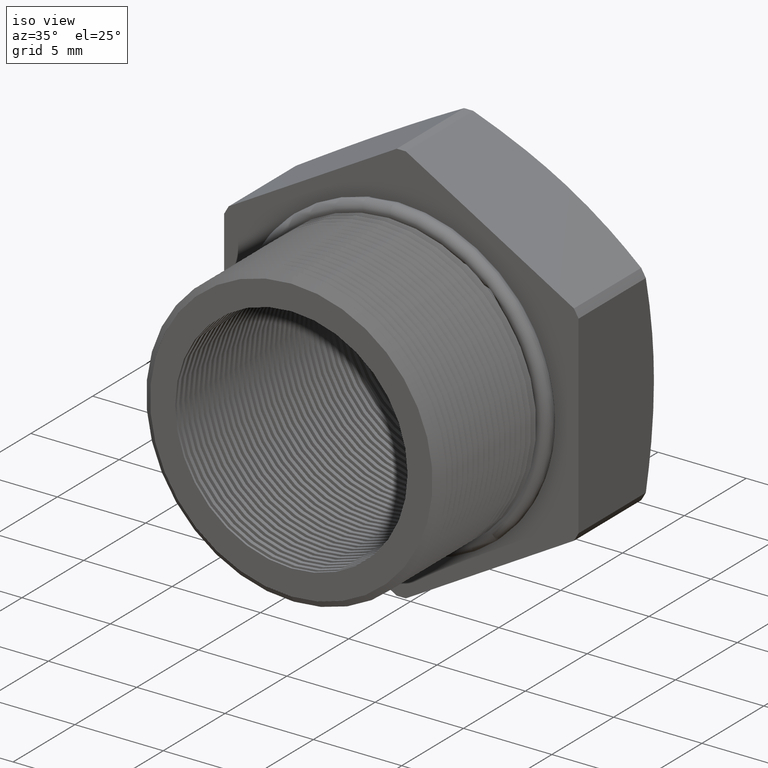
[diagram: clean part render]
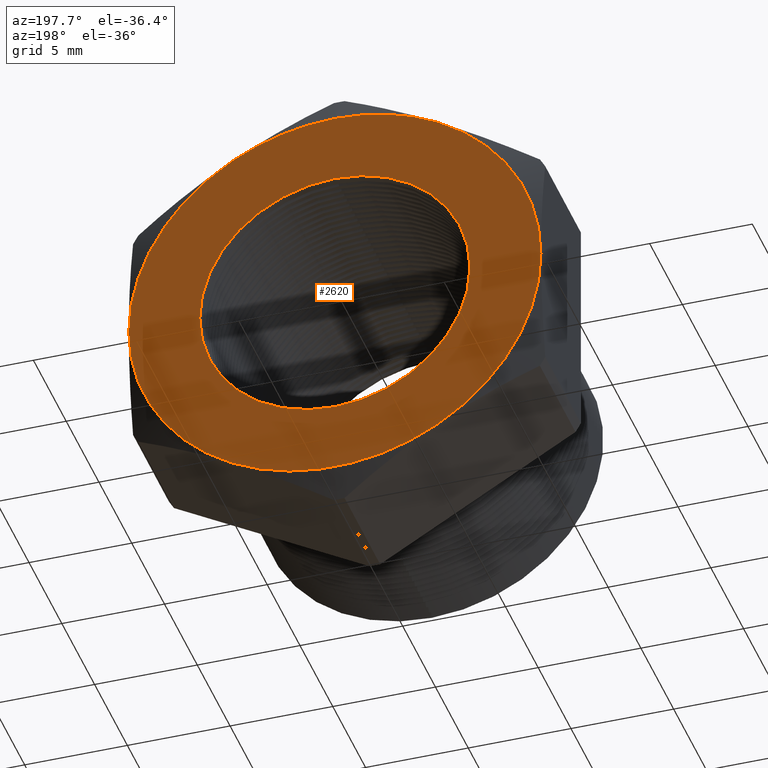
[diagram: tour spotlight — one face highlighted and labeled with its STEP entity id]
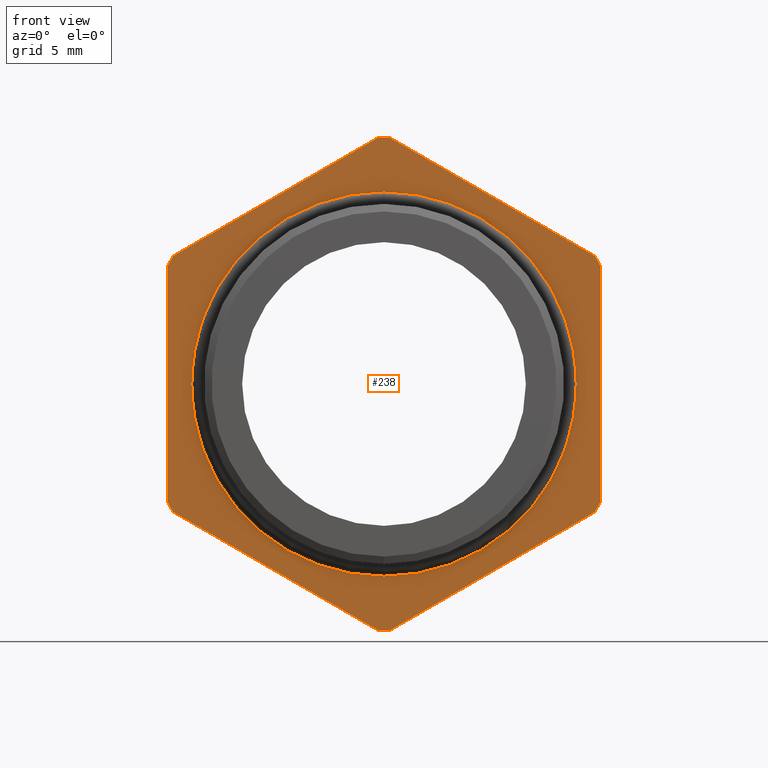
[diagram: tour spotlight — one face highlighted and labeled with its STEP entity id]
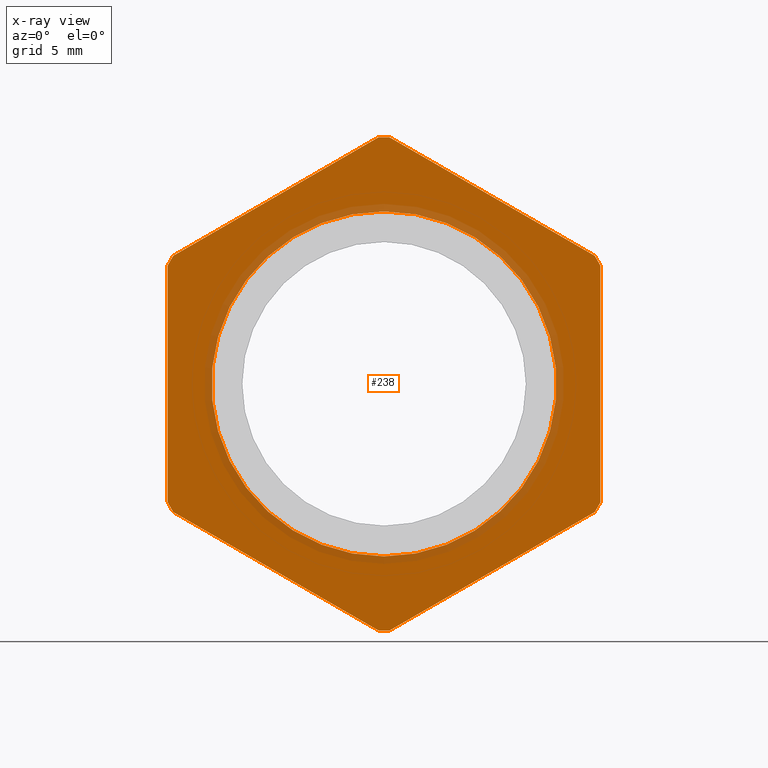
[diagram: x-ray of the same camera — body ghosted, this tour face saturated]
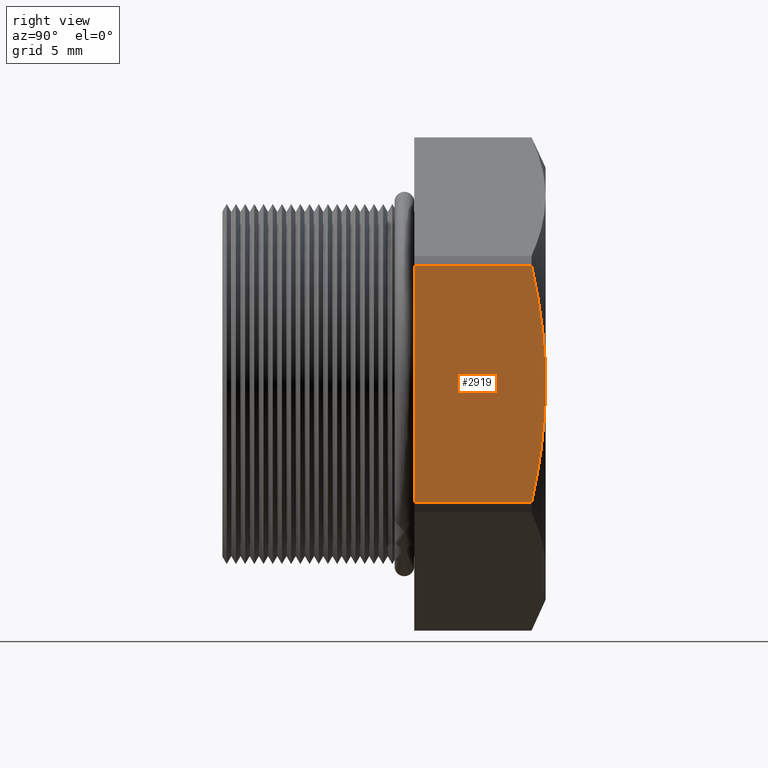
[diagram: tour spotlight — one face highlighted and labeled with its STEP entity id]
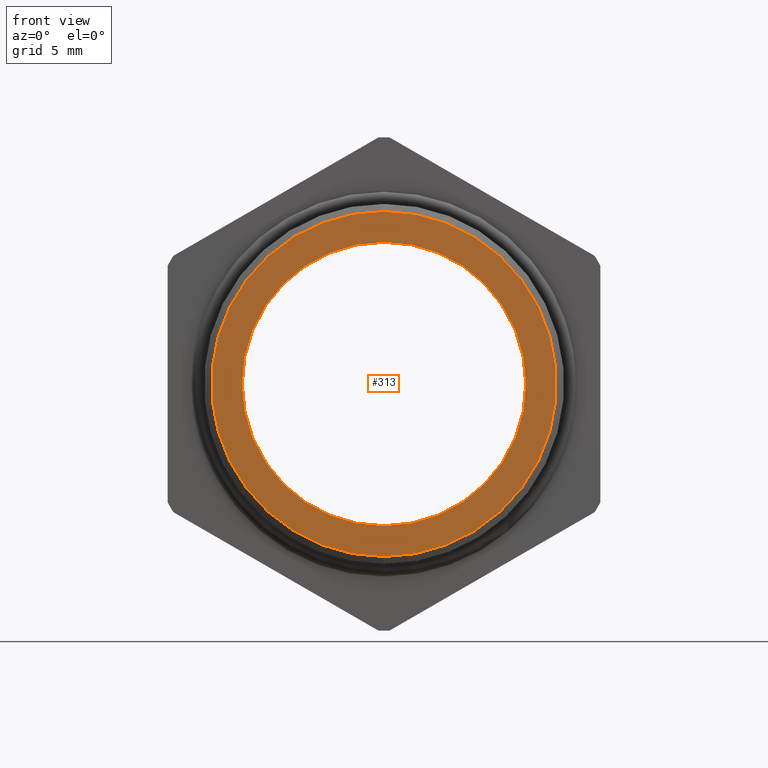
[diagram: tour spotlight — one face highlighted and labeled with its STEP entity id]
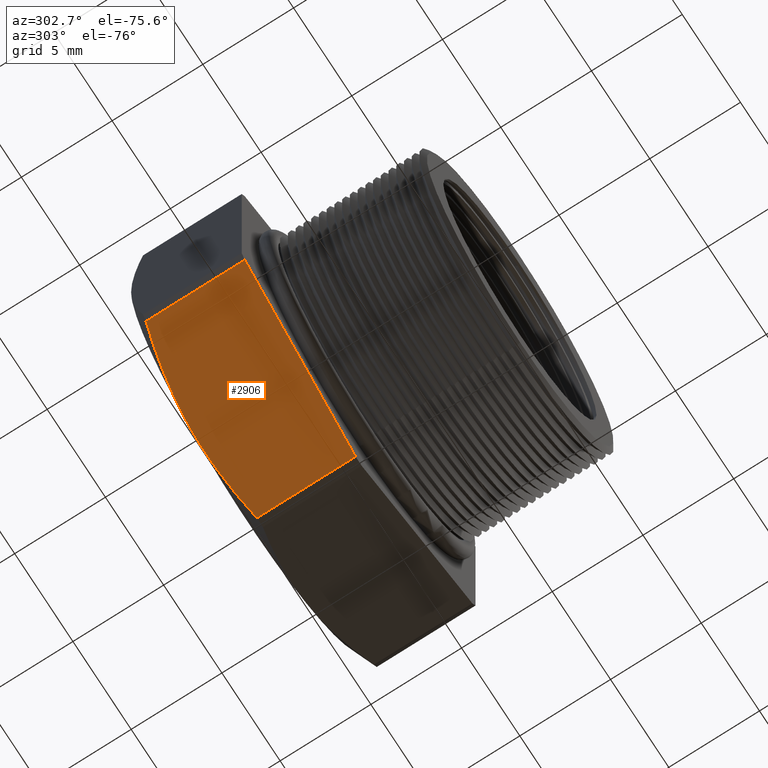
[diagram: tour spotlight — one face highlighted and labeled with its STEP entity id]
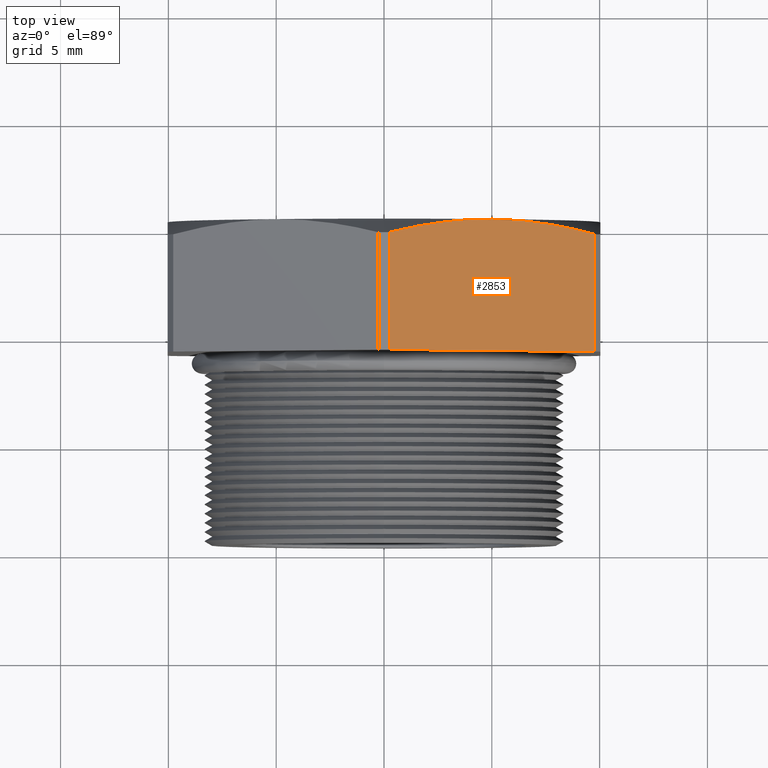
[diagram: tour spotlight — one face highlighted and labeled with its STEP entity id]
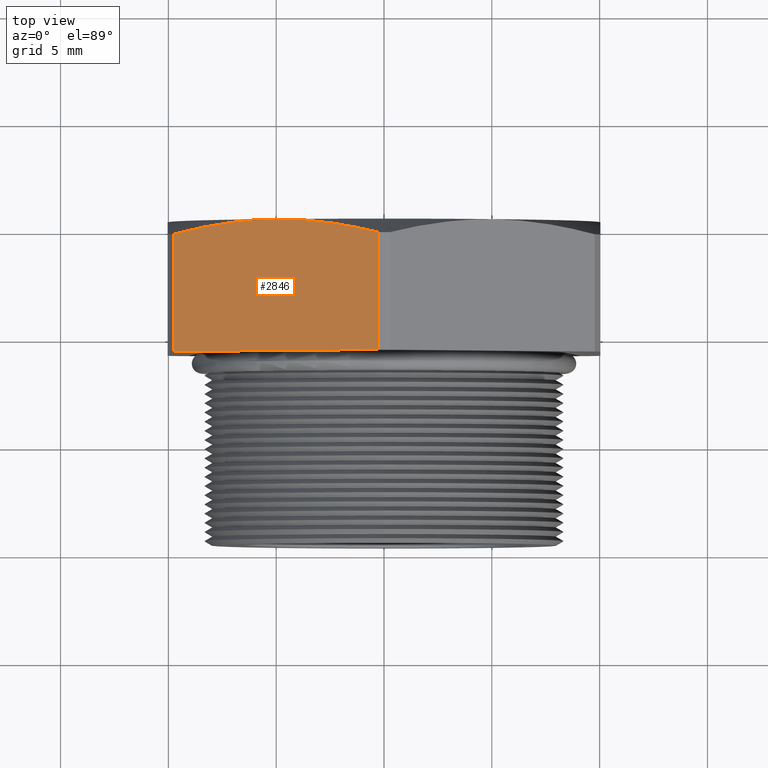
[diagram: tour spotlight — one face highlighted and labeled with its STEP entity id]
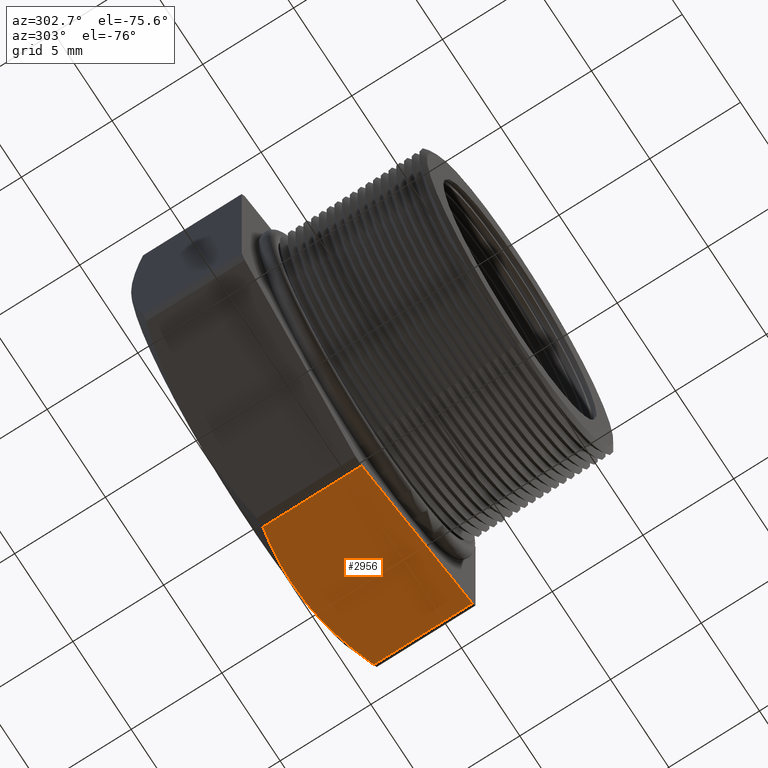
[diagram: tour spotlight — one face highlighted and labeled with its STEP entity id]
A machine part: a face-by-face anatomy tour. The part has 361 B-rep faces; the first image is the clean iso view, then the 8 largest visible faces are spotlighted one at a time (largest first), each with its STEP entity span.

Face 1 — auxiliary view, entity #2620. In plain terms, the highlighted planar face has unit normal (0, 1, 0).
Definition (entity closure, byte-faithful):
#672 = ORIENTED_EDGE ( 'NONE', *, *, #2709, .T. ) ;
#760 = VERTEX_POINT ( 'NONE', #5749 ) ;
#765 = EDGE_CURVE ( 'NONE', #760, #766, #5738, .T. ) ;
#766 = VERTEX_POINT ( 'NONE', #5733 ) ;
#1131 = DIRECTION ( 'NONE',  ( 0.0000000000000000000, 0.0000000000000000000, 1.000000000000000000 ) ) ;
#1132 = DIRECTION ( 'NONE',  ( 0.0000000000000000000, 1.000000000000000000, 0.0000000000000000000 ) ) ;
#1133 = CARTESIAN_POINT ( 'NONE',  ( 0.0000000000000000000, 0.4075548905829479200, 0.0000000000000000000 ) ) ;
#1134 = AXIS2_PLACEMENT_3D ( 'NONE', #1133, #1132, #1131 ) ;
#1135 = CIRCLE ( 'NONE', #1134, 0.3949999999999999600 ) ;
#1165 = CARTESIAN_POINT ( 'NONE',  ( 0.1975000000000001800, 0.4075548905829479700, 0.3420800344948533000 ) ) ;
#1166 = CARTESIAN_POINT ( 'NONE',  ( 0.0000000000000000000, 0.4075548905829479200, 0.3949999999999999600 ) ) ;
#2620 = ADVANCED_FACE ( 'NONE', ( #7276, #7275 ), #7274, .T. ) ;
#2643 = VERTEX_POINT ( 'NONE', #7294 ) ;
#2644 = VERTEX_POINT ( 'NONE', #7288 ) ;
#2664 = ORIENTED_EDGE ( 'NONE', *, *, #6222, .T. ) ;
#2666 = ORIENTED_EDGE ( 'NONE', *, *, #2684, .T. ) ;
#2676 = ORIENTED_EDGE ( 'NONE', *, *, #765, .T. ) ;
#2677 = VERTEX_POINT ( 'NONE', #7358 ) ;
#2678 = ORIENTED_EDGE ( 'NONE', *, *, #2680, .T. ) ;
#2680 = EDGE_CURVE ( 'NONE', #2643, #2644, #7347, .T. ) ;
#2684 = EDGE_CURVE ( 'NONE', #6238, #2643, #7406, .T. ) ;
#2685 = EDGE_LOOP ( 'NONE', ( #2686, #2664, #2666, #2678, #672, #2708, #2705 ) ) ;
#2686 = ORIENTED_EDGE ( 'NONE', *, *, #2687, .T. ) ;
#2687 = EDGE_CURVE ( 'NONE', #2677, #6237, #7401, .T. ) ;
#2693 = ORIENTED_EDGE ( 'NONE', *, *, #2694, .T. ) ;
#2694 = EDGE_CURVE ( 'NONE', #766, #760, #7384, .T. ) ;
#2703 = VERTEX_POINT ( 'NONE', #7435 ) ;
#2704 = EDGE_CURVE ( 'NONE', #2707, #2703, #7430, .T. ) ;
#2705 = ORIENTED_EDGE ( 'NONE', *, *, #2706, .T. ) ;
#2706 = EDGE_CURVE ( 'NONE', #2703, #2677, #7425, .T. ) ;
#2707 = VERTEX_POINT ( 'NONE', #7420 ) ;
#2708 = ORIENTED_EDGE ( 'NONE', *, *, #2704, .T. ) ;
#2709 = EDGE_CURVE ( 'NONE', #2644, #2707, #7418, .T. ) ;
#2710 = EDGE_LOOP ( 'NONE', ( #2693, #2676 ) ) ;
#5733 = CARTESIAN_POINT ( 'NONE',  ( 0.0000000000000000000, 0.4075548905829479200, -0.2589880461203001900 ) ) ;
#5734 = DIRECTION ( 'NONE',  ( 0.0000000000000000000, 0.0000000000000000000, -1.000000000000000000 ) ) ;
#5735 = DIRECTION ( 'NONE',  ( -0.0000000000000000000, -1.000000000000000000, -0.0000000000000000000 ) ) ;
#5736 = CARTESIAN_POINT ( 'NONE',  ( 0.0000000000000000000, 0.4075548905829479200, 0.0000000000000000000 ) ) ;
#5737 = AXIS2_PLACEMENT_3D ( 'NONE', #5736, #5735, #5734 ) ;
#5738 = CIRCLE ( 'NONE', #5737, 0.2589880461203001900 ) ;
#5749 = CARTESIAN_POINT ( 'NONE',  ( 3.171688816986526800E-017, 0.4075548905829479200, 0.2589880461203001900 ) ) ;
#6222 = EDGE_CURVE ( 'NONE', #6237, #6238, #1135, .T. ) ;
#6237 = VERTEX_POINT ( 'NONE', #1166 ) ;
#6238 = VERTEX_POINT ( 'NONE', #1165 ) ;
#7269 = DIRECTION ( 'NONE',  ( 0.0000000000000000000, -0.0000000000000000000, 1.000000000000000000 ) ) ;
#7270 = DIRECTION ( 'NONE',  ( 0.0000000000000000000, 1.000000000000000000, 0.0000000000000000000 ) ) ;
#7271 = AXIS2_PLACEMENT_3D ( 'NONE', #7273, #7270, #7269 ) ;
#7273 = CARTESIAN_POINT ( 'NONE',  ( 0.4502999999999999800, 0.4075548905829479200, 0.0000000000000000000 ) ) ;
#7274 = PLANE ( 'NONE',  #7271 ) ;
#7275 = FACE_OUTER_BOUND ( 'NONE', #2685, .T. ) ;
#7276 = FACE_BOUND ( 'NONE', #2710, .T. ) ;
#7288 = CARTESIAN_POINT ( 'NONE',  ( 0.1975000000000000400, 0.4075548905829479200, -0.3420800344948534700 ) ) ;
#7294 = CARTESIAN_POINT ( 'NONE',  ( 0.3949999999999999600, 0.4075548905829479200, 1.182924880895400500E-016 ) ) ;
#7343 = DIRECTION ( 'NONE',  ( 0.0000000000000000000, 0.0000000000000000000, 1.000000000000000000 ) ) ;
#7344 = DIRECTION ( 'NONE',  ( 0.0000000000000000000, 1.000000000000000000, 0.0000000000000000000 ) ) ;
#7345 = CARTESIAN_POINT ( 'NONE',  ( 0.0000000000000000000, 0.4075548905829479200, 0.0000000000000000000 ) ) ;
#7346 = AXIS2_PLACEMENT_3D ( 'NONE', #7345, #7344, #7343 ) ;
#7347 = CIRCLE ( 'NONE', #7346, 0.3949999999999999600 ) ;
#7358 = CARTESIAN_POINT ( 'NONE',  ( -0.1975000000000000100, 0.4075548905829479200, 0.3420800344948533600 ) ) ;
#7379 = DIRECTION ( 'NONE',  ( 0.0000000000000000000, 0.0000000000000000000, -1.000000000000000000 ) ) ;
#7380 = DIRECTION ( 'NONE',  ( -0.0000000000000000000, -1.000000000000000000, -0.0000000000000000000 ) ) ;
#7382 = CARTESIAN_POINT ( 'NONE',  ( 0.0000000000000000000, 0.4075548905829479200, 0.0000000000000000000 ) ) ;
#7383 = AXIS2_PLACEMENT_3D ( 'NONE', #7382, #7380, #7379 ) ;
#7384 = CIRCLE ( 'NONE', #7383, 0.2589880461203001900 ) ;
#7397 = DIRECTION ( 'NONE',  ( 0.0000000000000000000, 0.0000000000000000000, 1.000000000000000000 ) ) ;
#7398 = DIRECTION ( 'NONE',  ( 0.0000000000000000000, 1.000000000000000000, 0.0000000000000000000 ) ) ;
#7399 = CARTESIAN_POINT ( 'NONE',  ( 0.0000000000000000000, 0.4075548905829479200, 0.0000000000000000000 ) ) ;
#7400 = AXIS2_PLACEMENT_3D ( 'NONE', #7399, #7398, #7397 ) ;
#7401 = CIRCLE ( 'NONE', #7400, 0.3949999999999999600 ) ;
#7402 = DIRECTION ( 'NONE',  ( 0.0000000000000000000, 0.0000000000000000000, 1.000000000000000000 ) ) ;
#7403 = DIRECTION ( 'NONE',  ( 0.0000000000000000000, 1.000000000000000000, 0.0000000000000000000 ) ) ;
#7404 = CARTESIAN_POINT ( 'NONE',  ( 0.0000000000000000000, 0.4075548905829479200, 0.0000000000000000000 ) ) ;
#7405 = AXIS2_PLACEMENT_3D ( 'NONE', #7404, #7403, #7402 ) ;
#7406 = CIRCLE ( 'NONE', #7405, 0.3949999999999999600 ) ;
#7414 = DIRECTION ( 'NONE',  ( 0.0000000000000000000, 0.0000000000000000000, 1.000000000000000000 ) ) ;
#7415 = DIRECTION ( 'NONE',  ( 0.0000000000000000000, 1.000000000000000000, 0.0000000000000000000 ) ) ;
#7416 = CARTESIAN_POINT ( 'NONE',  ( 0.0000000000000000000, 0.4075548905829479200, 0.0000000000000000000 ) ) ;
#7417 = AXIS2_PLACEMENT_3D ( 'NONE', #7416, #7415, #7414 ) ;
#7418 = CIRCLE ( 'NONE', #7417, 0.3949999999999999600 ) ;
#7420 = CARTESIAN_POINT ( 'NONE',  ( -0.1975000000000000900, 0.4075548905829479200, -0.3420800344948531900 ) ) ;
#7421 = DIRECTION ( 'NONE',  ( 0.0000000000000000000, 0.0000000000000000000, 1.000000000000000000 ) ) ;
#7422 = DIRECTION ( 'NONE',  ( 0.0000000000000000000, 1.000000000000000000, 0.0000000000000000000 ) ) ;
#7423 = CARTESIAN_POINT ( 'NONE',  ( 0.0000000000000000000, 0.4075548905829479200, 0.0000000000000000000 ) ) ;
#7424 = AXIS2_PLACEMENT_3D ( 'NONE', #7423, #7422, #7421 ) ;
#7425 = CIRCLE ( 'NONE', #7424, 0.3949999999999999600 ) ;
#7426 = DIRECTION ( 'NONE',  ( 0.0000000000000000000, 0.0000000000000000000, 1.000000000000000000 ) ) ;
#7427 = DIRECTION ( 'NONE',  ( 0.0000000000000000000, 1.000000000000000000, 0.0000000000000000000 ) ) ;
#7428 = CARTESIAN_POINT ( 'NONE',  ( 0.0000000000000000000, 0.4075548905829479200, 0.0000000000000000000 ) ) ;
#7429 = AXIS2_PLACEMENT_3D ( 'NONE', #7428, #7427, #7426 ) ;
#7430 = CIRCLE ( 'NONE', #7429, 0.3949999999999999600 ) ;
#7435 = CARTESIAN_POINT ( 'NONE',  ( -0.3949999999999999600, 0.4075548905829479200, 0.0000000000000000000 ) ) ;

Face 2 — front view, entity #238. An x-ray twin of the same camera follows (body ghosted, this face saturated) — the face is partly hidden behind the body. In plain terms, the highlighted planar face has unit normal (0, -1, -0).
Definition (entity closure, byte-faithful):
#133 = EDGE_CURVE ( 'NONE', #800, #798, #4602, .T. ) ;
#161 = EDGE_LOOP ( 'NONE', ( #225, #231, #226, #232, #224, #230, #300, #302, #298, #297, #271, #268, #267 ) ) ;
#224 = ORIENTED_EDGE ( 'NONE', *, *, #2843, .T. ) ;
#225 = ORIENTED_EDGE ( 'NONE', *, *, #621, .T. ) ;
#226 = ORIENTED_EDGE ( 'NONE', *, *, #551, .T. ) ;
#227 = EDGE_CURVE ( 'NONE', #798, #800, #4736, .T. ) ;
#230 = ORIENTED_EDGE ( 'NONE', *, *, #2864, .T. ) ;
#231 = ORIENTED_EDGE ( 'NONE', *, *, #2124, .T. ) ;
#232 = ORIENTED_EDGE ( 'NONE', *, *, #2845, .T. ) ;
#238 = ADVANCED_FACE ( 'NONE', ( #4795, #4793 ), #4792, .T. ) ;
#243 = EDGE_LOOP ( 'NONE', ( #250, #246 ) ) ;
#246 = ORIENTED_EDGE ( 'NONE', *, *, #227, .F. ) ;
#250 = ORIENTED_EDGE ( 'NONE', *, *, #133, .F. ) ;
#267 = ORIENTED_EDGE ( 'NONE', *, *, #2922, .T. ) ;
#268 = ORIENTED_EDGE ( 'NONE', *, *, #681, .T. ) ;
#271 = ORIENTED_EDGE ( 'NONE', *, *, #2642, .T. ) ;
#297 = ORIENTED_EDGE ( 'NONE', *, *, #2960, .T. ) ;
#298 = ORIENTED_EDGE ( 'NONE', *, *, #2825, .T. ) ;
#300 = ORIENTED_EDGE ( 'NONE', *, *, #2959, .T. ) ;
#302 = ORIENTED_EDGE ( 'NONE', *, *, #2916, .T. ) ;
#528 = VERTEX_POINT ( 'NONE', #5247 ) ;
#548 = VERTEX_POINT ( 'NONE', #5279 ) ;
#551 = EDGE_CURVE ( 'NONE', #2696, #548, #5336, .T. ) ;
#571 = VERTEX_POINT ( 'NONE', #5370 ) ;
#621 = EDGE_CURVE ( 'NONE', #528, #624, #5458, .T. ) ;
#624 = VERTEX_POINT ( 'NONE', #5453 ) ;
#643 = VERTEX_POINT ( 'NONE', #5485 ) ;
#663 = VERTEX_POINT ( 'NONE', #5506 ) ;
#681 = EDGE_CURVE ( 'NONE', #2568, #571, #5534, .T. ) ;
#798 = VERTEX_POINT ( 'NONE', #5789 ) ;
#800 = VERTEX_POINT ( 'NONE', #5788 ) ;
#2124 = EDGE_CURVE ( 'NONE', #624, #2696, #3341, .T. ) ;
#2568 = VERTEX_POINT ( 'NONE', #7176 ) ;
#2569 = VERTEX_POINT ( 'NONE', #7171 ) ;
#2642 = EDGE_CURVE ( 'NONE', #2569, #2568, #7293, .T. ) ;
#2696 = VERTEX_POINT ( 'NONE', #7378 ) ;
#2798 = VERTEX_POINT ( 'NONE', #7587 ) ;
#2820 = VERTEX_POINT ( 'NONE', #7622 ) ;
#2825 = EDGE_CURVE ( 'NONE', #663, #643, #7666, .T. ) ;
#2829 = VERTEX_POINT ( 'NONE', #7661 ) ;
#2838 = VERTEX_POINT ( 'NONE', #7641 ) ;
#2843 = EDGE_CURVE ( 'NONE', #2829, #2838, #7639, .T. ) ;
#2845 = EDGE_CURVE ( 'NONE', #548, #2829, #7695, .T. ) ;
#2864 = EDGE_CURVE ( 'NONE', #2838, #2820, #7748, .T. ) ;
#2916 = EDGE_CURVE ( 'NONE', #2798, #663, #7820, .T. ) ;
#2922 = EDGE_CURVE ( 'NONE', #571, #528, #7855, .T. ) ;
#2959 = EDGE_CURVE ( 'NONE', #2820, #2798, #7902, .T. ) ;
#2960 = EDGE_CURVE ( 'NONE', #643, #2569, #7961, .T. ) ;
#3338 = DIRECTION ( 'NONE',  ( -2.994746533912406700E-016, 0.0000000000000000000, 1.000000000000000000 ) ) ;
#3339 = VECTOR ( 'NONE', #3338, 39.37007874015748100 ) ;
#3340 = CARTESIAN_POINT ( 'NONE',  ( 0.3949999999999999600, 0.1675548905829479500, 2.395797227129924600E-017 ) ) ;
#3341 = LINE ( 'NONE', #3340, #3339 ) ;
#4593 = DIRECTION ( 'NONE',  ( 0.0000000000000000000, 0.0000000000000000000, -1.000000000000000000 ) ) ;
#4594 = DIRECTION ( 'NONE',  ( -0.0000000000000000000, -1.000000000000000000, -0.0000000000000000000 ) ) ;
#4595 = CARTESIAN_POINT ( 'NONE',  ( 0.0000000000000000000, 0.1675548905829479500, 0.0000000000000000000 ) ) ;
#4596 = AXIS2_PLACEMENT_3D ( 'NONE', #4595, #4594, #4593 ) ;
#4602 = CIRCLE ( 'NONE', #4596, 0.3150000000000000000 ) ;
#4732 = DIRECTION ( 'NONE',  ( 0.0000000000000000000, 0.0000000000000000000, -1.000000000000000000 ) ) ;
#4733 = DIRECTION ( 'NONE',  ( -0.0000000000000000000, -1.000000000000000000, -0.0000000000000000000 ) ) ;
#4734 = CARTESIAN_POINT ( 'NONE',  ( 0.0000000000000000000, 0.1675548905829479500, 0.0000000000000000000 ) ) ;
#4735 = AXIS2_PLACEMENT_3D ( 'NONE', #4734, #4733, #4732 ) ;
#4736 = CIRCLE ( 'NONE', #4735, 0.3150000000000000000 ) ;
#4787 = DIRECTION ( 'NONE',  ( 0.0000000000000000000, 0.0000000000000000000, -1.000000000000000000 ) ) ;
#4788 = DIRECTION ( 'NONE',  ( 0.0000000000000000000, -1.000000000000000000, -0.0000000000000000000 ) ) ;
#4789 = AXIS2_PLACEMENT_3D ( 'NONE', #4791, #4788, #4787 ) ;
#4791 = CARTESIAN_POINT ( 'NONE',  ( 0.3150000000000000000, 0.1675548905829479500, 0.0000000000000000000 ) ) ;
#4792 = PLANE ( 'NONE',  #4789 ) ;
#4793 = FACE_OUTER_BOUND ( 'NONE', #161, .T. ) ;
#4795 = FACE_BOUND ( 'NONE', #243, .T. ) ;
#5247 = CARTESIAN_POINT ( 'NONE',  ( 0.3847399997329628000, 0.1675548905829479500, -0.2339769702459620100 ) ) ;
#5279 = CARTESIAN_POINT ( 'NONE',  ( 0.3847399997329628600, 0.1675548905829479500, 0.2339769702459617900 ) ) ;
#5331 = DIRECTION ( 'NONE',  ( 0.0000000000000000000, 0.0000000000000000000, -1.000000000000000000 ) ) ;
#5332 = DIRECTION ( 'NONE',  ( -0.0000000000000000000, -1.000000000000000000, -0.0000000000000000000 ) ) ;
#5333 = CARTESIAN_POINT ( 'NONE',  ( 0.0000000000000000000, 0.1675548905829479500, 0.0000000000000000000 ) ) ;
#5335 = AXIS2_PLACEMENT_3D ( 'NONE', #5333, #5332, #5331 ) ;
#5336 = CIRCLE ( 'NONE', #5335, 0.4502999999999999800 ) ;
#5370 = CARTESIAN_POINT ( 'NONE',  ( 0.01026000026703720500, 0.1675548905829479500, -0.4501830987437447900 ) ) ;
#5453 = CARTESIAN_POINT ( 'NONE',  ( 0.3950000000000000200, 0.1675548905829479500, -0.2162061284977832000 ) ) ;
#5454 = DIRECTION ( 'NONE',  ( 0.0000000000000000000, 0.0000000000000000000, -1.000000000000000000 ) ) ;
#5455 = DIRECTION ( 'NONE',  ( -0.0000000000000000000, -1.000000000000000000, -0.0000000000000000000 ) ) ;
#5456 = CARTESIAN_POINT ( 'NONE',  ( 0.0000000000000000000, 0.1675548905829479500, 0.0000000000000000000 ) ) ;
#5457 = AXIS2_PLACEMENT_3D ( 'NONE', #5456, #5455, #5454 ) ;
#5458 = CIRCLE ( 'NONE', #5457, 0.4502999999999999800 ) ;
#5485 = CARTESIAN_POINT ( 'NONE',  ( -0.3847399997329630200, 0.1675548905829479500, -0.2339769702459614800 ) ) ;
#5506 = CARTESIAN_POINT ( 'NONE',  ( -0.3949999999999999600, 0.1675548905829479500, -0.2162061284977833100 ) ) ;
#5530 = DIRECTION ( 'NONE',  ( 0.0000000000000000000, 0.0000000000000000000, -1.000000000000000000 ) ) ;
#5531 = DIRECTION ( 'NONE',  ( -0.0000000000000000000, -1.000000000000000000, -0.0000000000000000000 ) ) ;
#5532 = CARTESIAN_POINT ( 'NONE',  ( 0.0000000000000000000, 0.1675548905829479500, 0.0000000000000000000 ) ) ;
#5533 = AXIS2_PLACEMENT_3D ( 'NONE', #5532, #5531, #5530 ) ;
#5534 = CIRCLE ( 'NONE', #5533, 0.4502999999999999800 ) ;
#5788 = CARTESIAN_POINT ( 'NONE',  ( 0.0000000000000000000, 0.1675548905829479500, -0.3150000000000000000 ) ) ;
#5789 = CARTESIAN_POINT ( 'NONE',  ( 3.857637417314162700E-017, 0.1675548905829479500, 0.3150000000000000000 ) ) ;
#7171 = CARTESIAN_POINT ( 'NONE',  ( -0.01026000026703719400, 0.1675548905829479500, -0.4501830987437449600 ) ) ;
#7176 = CARTESIAN_POINT ( 'NONE',  ( 0.0000000000000000000, 0.1675548905829479500, -0.4502999999999999800 ) ) ;
#7289 = DIRECTION ( 'NONE',  ( 0.0000000000000000000, 0.0000000000000000000, -1.000000000000000000 ) ) ;
#7290 = DIRECTION ( 'NONE',  ( -0.0000000000000000000, -1.000000000000000000, -0.0000000000000000000 ) ) ;
#7291 = CARTESIAN_POINT ( 'NONE',  ( 0.0000000000000000000, 0.1675548905829479500, 0.0000000000000000000 ) ) ;
#7292 = AXIS2_PLACEMENT_3D ( 'NONE', #7291, #7290, #7289 ) ;
#7293 = CIRCLE ( 'NONE', #7292, 0.4502999999999999800 ) ;
#7378 = CARTESIAN_POINT ( 'NONE',  ( 0.3949999999999999100, 0.1675548905829479500, 0.2162061284977834200 ) ) ;
#7587 = CARTESIAN_POINT ( 'NONE',  ( -0.3949999999999999600, 0.1675548905829479500, 0.2162061284977833100 ) ) ;
#7622 = CARTESIAN_POINT ( 'NONE',  ( -0.3847399997329628000, 0.1675548905829479500, 0.2339769702459618100 ) ) ;
#7635 = DIRECTION ( 'NONE',  ( 0.0000000000000000000, 0.0000000000000000000, -1.000000000000000000 ) ) ;
#7636 = DIRECTION ( 'NONE',  ( -0.0000000000000000000, -1.000000000000000000, -0.0000000000000000000 ) ) ;
#7637 = CARTESIAN_POINT ( 'NONE',  ( 0.0000000000000000000, 0.1675548905829479500, 0.0000000000000000000 ) ) ;
#7638 = AXIS2_PLACEMENT_3D ( 'NONE', #7637, #7636, #7635 ) ;
#7639 = CIRCLE ( 'NONE', #7638, 0.4502999999999999800 ) ;
#7641 = CARTESIAN_POINT ( 'NONE',  ( -0.01026000026703719400, 0.1675548905829479500, 0.4501830987437449000 ) ) ;
#7661 = CARTESIAN_POINT ( 'NONE',  ( 0.01026000026703746700, 0.1675548905829479500, 0.4501830987437449600 ) ) ;
#7662 = DIRECTION ( 'NONE',  ( 0.0000000000000000000, 0.0000000000000000000, -1.000000000000000000 ) ) ;
#7663 = DIRECTION ( 'NONE',  ( -0.0000000000000000000, -1.000000000000000000, -0.0000000000000000000 ) ) ;
#7664 = CARTESIAN_POINT ( 'NONE',  ( 0.0000000000000000000, 0.1675548905829479500, 0.0000000000000000000 ) ) ;
#7665 = AXIS2_PLACEMENT_3D ( 'NONE', #7664, #7663, #7662 ) ;
#7666 = CIRCLE ( 'NONE', #7665, 0.4502999999999999800 ) ;
#7692 = DIRECTION ( 'NONE',  ( -0.8660254037844384900, 0.0000000000000000000, 0.5000000000000001100 ) ) ;
#7693 = VECTOR ( 'NONE', #7692, 39.37007874015748900 ) ;
#7694 = CARTESIAN_POINT ( 'NONE',  ( 0.4337500000000000200, 0.1675548905829479500, 0.2056810333988042200 ) ) ;
#7695 = LINE ( 'NONE', #7694, #7693 ) ;
#7744 = DIRECTION ( 'NONE',  ( -0.8660254037844386000, 0.0000000000000000000, -0.4999999999999998300 ) ) ;
#7745 = VECTOR ( 'NONE', #7744, 39.37007874015748900 ) ;
#7746 = CARTESIAN_POINT ( 'NONE',  ( 0.03875000000000002700, 0.1675548905829479500, 0.4784790355909024400 ) ) ;
#7748 = LINE ( 'NONE', #7746, #7745 ) ;
#7817 = DIRECTION ( 'NONE',  ( 0.0000000000000000000, 0.0000000000000000000, -1.000000000000000000 ) ) ;
#7818 = VECTOR ( 'NONE', #7817, 39.37007874015748100 ) ;
#7819 = CARTESIAN_POINT ( 'NONE',  ( -0.3949999999999999600, 0.1675548905829479500, 0.0000000000000000000 ) ) ;
#7820 = LINE ( 'NONE', #7819, #7818 ) ;
#7846 = DIRECTION ( 'NONE',  ( 0.8660254037844388200, 0.0000000000000000000, 0.4999999999999998300 ) ) ;
#7847 = VECTOR ( 'NONE', #7846, 39.37007874015748100 ) ;
#7854 = CARTESIAN_POINT ( 'NONE',  ( 0.4337499999999999700, 0.1675548905829479500, -0.2056810333988043400 ) ) ;
#7855 = LINE ( 'NONE', #7854, #7847 ) ;
#7901 = AXIS2_PLACEMENT_3D ( 'NONE', #7964, #7963, #7962 ) ;
#7902 = CIRCLE ( 'NONE', #7901, 0.4502999999999999800 ) ;
#7958 = DIRECTION ( 'NONE',  ( 0.8660254037844384900, 0.0000000000000000000, -0.5000000000000001100 ) ) ;
#7959 = VECTOR ( 'NONE', #7958, 39.37007874015748900 ) ;
#7960 = CARTESIAN_POINT ( 'NONE',  ( 0.03874999999999986100, 0.1675548905829479500, -0.4784790355909022700 ) ) ;
#7961 = LINE ( 'NONE', #7960, #7959 ) ;
#7962 = DIRECTION ( 'NONE',  ( 0.0000000000000000000, 0.0000000000000000000, -1.000000000000000000 ) ) ;
#7963 = DIRECTION ( 'NONE',  ( -0.0000000000000000000, -1.000000000000000000, -0.0000000000000000000 ) ) ;
#7964 = CARTESIAN_POINT ( 'NONE',  ( 0.0000000000000000000, 0.1675548905829479500, 0.0000000000000000000 ) ) ;

Face 3 — right view, entity #2919. In plain terms, the highlighted planar face has unit normal (1, -0, 0).
Definition (entity closure, byte-faithful):
#624 = VERTEX_POINT ( 'NONE', #5453 ) ;
#633 = EDGE_CURVE ( 'NONE', #671, #624, #5435, .T. ) ;
#671 = VERTEX_POINT ( 'NONE', #5552 ) ;
#2121 = ORIENTED_EDGE ( 'NONE', *, *, #2124, .F. ) ;
#2124 = EDGE_CURVE ( 'NONE', #624, #2696, #3341, .T. ) ;
#2125 = EDGE_CURVE ( 'NONE', #2643, #2692, #3337, .T. ) ;
#2126 = ORIENTED_EDGE ( 'NONE', *, *, #2125, .T. ) ;
#2127 = ORIENTED_EDGE ( 'NONE', *, *, #2691, .F. ) ;
#2144 = ORIENTED_EDGE ( 'NONE', *, *, #633, .F. ) ;
#2153 = ORIENTED_EDGE ( 'NONE', *, *, #2155, .T. ) ;
#2155 = EDGE_CURVE ( 'NONE', #671, #2643, #3397, .T. ) ;
#2643 = VERTEX_POINT ( 'NONE', #7294 ) ;
#2691 = EDGE_CURVE ( 'NONE', #2696, #2692, #7389, .T. ) ;
#2692 = VERTEX_POINT ( 'NONE', #7385 ) ;
#2696 = VERTEX_POINT ( 'NONE', #7378 ) ;
#2914 = EDGE_LOOP ( 'NONE', ( #2144, #2153, #2126, #2127, #2121 ) ) ;
#2919 = ADVANCED_FACE ( 'NONE', ( #7861 ), #7811, .T. ) ;
#3325 = CARTESIAN_POINT ( 'NONE',  ( 0.3949999999999999100, 0.3817680770869766300, 0.2162061284977834200 ) ) ;
#3326 = CARTESIAN_POINT ( 'NONE',  ( 0.3949999999999999100, 0.3857283079575490900, 0.1985179992191863900 ) ) ;
#3327 = CARTESIAN_POINT ( 'NONE',  ( 0.3949999999999999600, 0.3893434243502194600, 0.1807051416628362400 ) ) ;
#3328 = CARTESIAN_POINT ( 'NONE',  ( 0.3949999999999999100, 0.3957261188471292700, 0.1447731166216497100 ) ) ;
#3329 = CARTESIAN_POINT ( 'NONE',  ( 0.3949999999999999100, 0.3984951459428464600, 0.1266131864777914900 ) ) ;
#3331 = CARTESIAN_POINT ( 'NONE',  ( 0.3949999999999999600, 0.4052039355878226400, 0.07230054657575603300 ) ) ;
#3332 = CARTESIAN_POINT ( 'NONE',  ( 0.3950000000000000200, 0.4075548905829479200, 0.03612954022846508900 ) ) ;
#3333 = CARTESIAN_POINT ( 'NONE',  ( 0.3949999999999999600, 0.4075548905829479200, 1.182924880895400500E-016 ) ) ;
#3337 = B_SPLINE_CURVE_WITH_KNOTS ( 'NONE', 3,
 ( #3333, #3332, #3331, #3329, #3328, #3327, #3326, #3325 ),
 .UNSPECIFIED., .F., .F.,
 ( 4, 2, 2, 4 ),
 ( 0.01589219028229338400, 0.01866199860002303000, 0.02004690275888785400, 0.02143180691775267700 ),
 .UNSPECIFIED. ) ;
#3338 = DIRECTION ( 'NONE',  ( -2.994746533912406700E-016, 0.0000000000000000000, 1.000000000000000000 ) ) ;
#3339 = VECTOR ( 'NONE', #3338, 39.37007874015748100 ) ;
#3340 = CARTESIAN_POINT ( 'NONE',  ( 0.3949999999999999600, 0.1675548905829479500, 2.395797227129924600E-017 ) ) ;
#3341 = LINE ( 'NONE', #3340, #3339 ) ;
#3387 = CARTESIAN_POINT ( 'NONE',  ( 0.3949999999999999600, 0.4075548905829479200, 1.182924880895400500E-016 ) ) ;
#3388 = CARTESIAN_POINT ( 'NONE',  ( 0.3950000000000000200, 0.4075548905829479700, -0.03615391846087630300 ) ) ;
#3389 = CARTESIAN_POINT ( 'NONE',  ( 0.3949999999999999100, 0.4052017611603078700, -0.07226633245039768000 ) ) ;
#3390 = CARTESIAN_POINT ( 'NONE',  ( 0.3950000000000000200, 0.3963023347622854400, -0.1444172013854097800 ) ) ;
#3391 = CARTESIAN_POINT ( 'NONE',  ( 0.3949999999999999600, 0.3897427823618834200, -0.1805875945104273000 ) ) ;
#3392 = CARTESIAN_POINT ( 'NONE',  ( 0.3950000000000000200, 0.3817680770869807900, -0.2162061284977874500 ) ) ;
#3397 = B_SPLINE_CURVE_WITH_KNOTS ( 'NONE', 3,
 ( #3392, #3391, #3390, #3389, #3388, #3387 ),
 .UNSPECIFIED., .F., .F.,
 ( 4, 2, 4 ),
 ( 0.01034883581731967100, 0.01312051304980652700, 0.01589219028229338400 ),
 .UNSPECIFIED. ) ;
#5434 = CARTESIAN_POINT ( 'NONE',  ( 0.3950000000000000200, 0.0000000000000000000, -0.2162061284977832000 ) ) ;
#5435 = LINE ( 'NONE', #5434, #5496 ) ;
#5453 = CARTESIAN_POINT ( 'NONE',  ( 0.3950000000000000200, 0.1675548905829479500, -0.2162061284977832000 ) ) ;
#5495 = DIRECTION ( 'NONE',  ( -0.0000000000000000000, -1.000000000000000000, -0.0000000000000000000 ) ) ;
#5496 = VECTOR ( 'NONE', #5495, 39.37007874015748100 ) ;
#5552 = CARTESIAN_POINT ( 'NONE',  ( 0.3950000000000000200, 0.3817680770869807900, -0.2162061284977874500 ) ) ;
#7294 = CARTESIAN_POINT ( 'NONE',  ( 0.3949999999999999600, 0.4075548905829479200, 1.182924880895400500E-016 ) ) ;
#7378 = CARTESIAN_POINT ( 'NONE',  ( 0.3949999999999999100, 0.1675548905829479500, 0.2162061284977834200 ) ) ;
#7385 = CARTESIAN_POINT ( 'NONE',  ( 0.3949999999999999100, 0.3817680770869766300, 0.2162061284977834200 ) ) ;
#7386 = DIRECTION ( 'NONE',  ( 0.0000000000000000000, 1.000000000000000000, 0.0000000000000000000 ) ) ;
#7387 = VECTOR ( 'NONE', #7386, 39.37007874015748100 ) ;
#7388 = CARTESIAN_POINT ( 'NONE',  ( 0.3949999999999999100, 0.0000000000000000000, 0.2162061284977834200 ) ) ;
#7389 = LINE ( 'NONE', #7388, #7387 ) ;
#7811 = PLANE ( 'NONE',  #7860 ) ;
#7857 = DIRECTION ( 'NONE',  ( 2.994746533912406700E-016, 0.0000000000000000000, -1.000000000000000000 ) ) ;
#7858 = DIRECTION ( 'NONE',  ( 1.000000000000000000, -0.0000000000000000000, 2.994746533912406700E-016 ) ) ;
#7859 = CARTESIAN_POINT ( 'NONE',  ( 0.3950000000000000200, 0.4075548905829479700, -0.2280533563299023100 ) ) ;
#7860 = AXIS2_PLACEMENT_3D ( 'NONE', #7859, #7858, #7857 ) ;
#7861 = FACE_OUTER_BOUND ( 'NONE', #2914, .T. ) ;

Face 4 — front view, entity #313. In plain terms, the highlighted planar face has unit normal (0, -1, -0).
Definition (entity closure, byte-faithful):
#299 = ORIENTED_EDGE ( 'NONE', *, *, #746, .F. ) ;
#301 = EDGE_CURVE ( 'NONE', #738, #747, #4878, .T. ) ;
#303 = ORIENTED_EDGE ( 'NONE', *, *, #2128, .F. ) ;
#305 = ORIENTED_EDGE ( 'NONE', *, *, #301, .F. ) ;
#306 = EDGE_LOOP ( 'NONE', ( #305, #299 ) ) ;
#307 = EDGE_CURVE ( 'NONE', #2132, #2131, #4872, .T. ) ;
#310 = ORIENTED_EDGE ( 'NONE', *, *, #307, .F. ) ;
#311 = EDGE_LOOP ( 'NONE', ( #310, #303 ) ) ;
#313 = ADVANCED_FACE ( 'NONE', ( #4921, #4920 ), #4919, .T. ) ;
#738 = VERTEX_POINT ( 'NONE', #5674 ) ;
#746 = EDGE_CURVE ( 'NONE', #747, #738, #5720, .T. ) ;
#747 = VERTEX_POINT ( 'NONE', #5715 ) ;
#2128 = EDGE_CURVE ( 'NONE', #2131, #2132, #3334, .T. ) ;
#2131 = VERTEX_POINT ( 'NONE', #3316 ) ;
#2132 = VERTEX_POINT ( 'NONE', #3315 ) ;
#3315 = CARTESIAN_POINT ( 'NONE',  ( 0.0000000000000000000, -0.1824451094170520000, 0.3150000000000000000 ) ) ;
#3316 = CARTESIAN_POINT ( 'NONE',  ( 3.857637417314162700E-017, -0.1824451094170520000, -0.3150000000000000000 ) ) ;
#3322 = DIRECTION ( 'NONE',  ( 0.0000000000000000000, 0.0000000000000000000, -1.000000000000000000 ) ) ;
#3323 = DIRECTION ( 'NONE',  ( 0.0000000000000000000, 1.000000000000000000, 0.0000000000000000000 ) ) ;
#3324 = AXIS2_PLACEMENT_3D ( 'NONE', #3336, #3323, #3322 ) ;
#3334 = CIRCLE ( 'NONE', #3324, 0.3150000000000000000 ) ;
#3336 = CARTESIAN_POINT ( 'NONE',  ( 0.0000000000000000000, -0.1824451094170520000, 0.0000000000000000000 ) ) ;
#4868 = DIRECTION ( 'NONE',  ( 0.0000000000000000000, 0.0000000000000000000, -1.000000000000000000 ) ) ;
#4869 = DIRECTION ( 'NONE',  ( 0.0000000000000000000, 1.000000000000000000, 0.0000000000000000000 ) ) ;
#4870 = CARTESIAN_POINT ( 'NONE',  ( 0.0000000000000000000, -0.1824451094170520000, 0.0000000000000000000 ) ) ;
#4871 = AXIS2_PLACEMENT_3D ( 'NONE', #4870, #4869, #4868 ) ;
#4872 = CIRCLE ( 'NONE', #4871, 0.3150000000000000000 ) ;
#4874 = DIRECTION ( 'NONE',  ( 0.0000000000000000000, 0.0000000000000000000, -1.000000000000000000 ) ) ;
#4875 = DIRECTION ( 'NONE',  ( -0.0000000000000000000, -1.000000000000000000, -0.0000000000000000000 ) ) ;
#4876 = CARTESIAN_POINT ( 'NONE',  ( 0.0000000000000000000, -0.1824451094170520000, 0.0000000000000000000 ) ) ;
#4877 = AXIS2_PLACEMENT_3D ( 'NONE', #4876, #4875, #4874 ) ;
#4878 = CIRCLE ( 'NONE', #4877, 0.2589880461203001900 ) ;
#4914 = DIRECTION ( 'NONE',  ( 0.0000000000000000000, 0.0000000000000000000, -1.000000000000000000 ) ) ;
#4915 = DIRECTION ( 'NONE',  ( 0.0000000000000000000, -1.000000000000000000, -0.0000000000000000000 ) ) ;
#4916 = AXIS2_PLACEMENT_3D ( 'NONE', #4918, #4915, #4914 ) ;
#4918 = CARTESIAN_POINT ( 'NONE',  ( 0.2589880461203001900, -0.1824451094170520000, 0.0000000000000000000 ) ) ;
#4919 = PLANE ( 'NONE',  #4916 ) ;
#4920 = FACE_BOUND ( 'NONE', #306, .T. ) ;
#4921 = FACE_OUTER_BOUND ( 'NONE', #311, .T. ) ;
#5674 = CARTESIAN_POINT ( 'NONE',  ( 0.0000000000000000000, -0.1824451094170520000, -0.2589880461203001900 ) ) ;
#5715 = CARTESIAN_POINT ( 'NONE',  ( 3.171688816986526800E-017, -0.1824451094170520000, 0.2589880461203001900 ) ) ;
#5716 = DIRECTION ( 'NONE',  ( 0.0000000000000000000, 0.0000000000000000000, -1.000000000000000000 ) ) ;
#5717 = DIRECTION ( 'NONE',  ( -0.0000000000000000000, -1.000000000000000000, -0.0000000000000000000 ) ) ;
#5718 = CARTESIAN_POINT ( 'NONE',  ( 0.0000000000000000000, -0.1824451094170520000, 0.0000000000000000000 ) ) ;
#5719 = AXIS2_PLACEMENT_3D ( 'NONE', #5718, #5717, #5716 ) ;
#5720 = CIRCLE ( 'NONE', #5719, 0.2589880461203001900 ) ;

Face 5 — auxiliary view, entity #2906. In plain terms, the highlighted planar face has unit normal (-0.5, 0, -0.866).
Definition (entity closure, byte-faithful):
#640 = EDGE_CURVE ( 'NONE', #641, #643, #5490, .T. ) ;
#641 = VERTEX_POINT ( 'NONE', #5486 ) ;
#643 = VERTEX_POINT ( 'NONE', #5485 ) ;
#2569 = VERTEX_POINT ( 'NONE', #7171 ) ;
#2594 = VERTEX_POINT ( 'NONE', #7190 ) ;
#2630 = EDGE_CURVE ( 'NONE', #2569, #2594, #7252, .T. ) ;
#2707 = VERTEX_POINT ( 'NONE', #7420 ) ;
#2868 = ORIENTED_EDGE ( 'NONE', *, *, #2630, .F. ) ;
#2871 = ORIENTED_EDGE ( 'NONE', *, *, #640, .F. ) ;
#2872 = EDGE_LOOP ( 'NONE', ( #2871, #2875, #2878, #2868, #2962 ) ) ;
#2875 = ORIENTED_EDGE ( 'NONE', *, *, #2876, .T. ) ;
#2876 = EDGE_CURVE ( 'NONE', #641, #2707, #7725, .T. ) ;
#2877 = EDGE_CURVE ( 'NONE', #2707, #2594, #7773, .T. ) ;
#2878 = ORIENTED_EDGE ( 'NONE', *, *, #2877, .T. ) ;
#2906 = ADVANCED_FACE ( 'NONE', ( #7836 ), #7835, .T. ) ;
#2960 = EDGE_CURVE ( 'NONE', #643, #2569, #7961, .T. ) ;
#2962 = ORIENTED_EDGE ( 'NONE', *, *, #2960, .F. ) ;
#5485 = CARTESIAN_POINT ( 'NONE',  ( -0.3847399997329630200, 0.1675548905829479500, -0.2339769702459614800 ) ) ;
#5486 = CARTESIAN_POINT ( 'NONE',  ( -0.3847399997329630800, 0.3817680770869766900, -0.2339769702459614200 ) ) ;
#5487 = DIRECTION ( 'NONE',  ( -0.0000000000000000000, -1.000000000000000000, -0.0000000000000000000 ) ) ;
#5488 = VECTOR ( 'NONE', #5487, 39.37007874015748100 ) ;
#5489 = CARTESIAN_POINT ( 'NONE',  ( -0.3847399997329630800, 0.0000000000000000000, -0.2339769702459615100 ) ) ;
#5490 = LINE ( 'NONE', #5489, #5488 ) ;
#7171 = CARTESIAN_POINT ( 'NONE',  ( -0.01026000026703719400, 0.1675548905829479500, -0.4501830987437449600 ) ) ;
#7190 = CARTESIAN_POINT ( 'NONE',  ( -0.01026000026703705900, 0.3817680770869766300, -0.4501830987437449000 ) ) ;
#7249 = DIRECTION ( 'NONE',  ( 0.0000000000000000000, 1.000000000000000000, 0.0000000000000000000 ) ) ;
#7250 = VECTOR ( 'NONE', #7249, 39.37007874015748100 ) ;
#7251 = CARTESIAN_POINT ( 'NONE',  ( -0.01026000026703705700, 0.0000000000000000000, -0.4501830987437449600 ) ) ;
#7252 = LINE ( 'NONE', #7251, #7250 ) ;
#7420 = CARTESIAN_POINT ( 'NONE',  ( -0.1975000000000000900, 0.4075548905829479200, -0.3420800344948531900 ) ) ;
#7725 = B_SPLINE_CURVE_WITH_KNOTS ( 'NONE', 3,
 ( #7779, #7778, #7777, #7776, #7775, #7774 ),
 .UNSPECIFIED., .F., .F.,
 ( 4, 2, 4 ),
 ( 2.335025902574512600E-007, 0.002760212844509912700, 0.005520192186429568100 ),
 .UNSPECIFIED. ) ;
#7767 = CARTESIAN_POINT ( 'NONE',  ( -0.01026000026703705900, 0.3817680770869766300, -0.4501830987437449000 ) ) ;
#7768 = CARTESIAN_POINT ( 'NONE',  ( -0.04113558834110792700, 0.3897502881590466700, -0.4323570696577919700 ) ) ;
#7769 = CARTESIAN_POINT ( 'NONE',  ( -0.07225680565382706900, 0.3962764420413619800, -0.4143892264647846000 ) ) ;
#7770 = CARTESIAN_POINT ( 'NONE',  ( -0.1350411223813805000, 0.4052207272773966600, -0.3781406843012450900 ) ) ;
#7771 = CARTESIAN_POINT ( 'NONE',  ( -0.1663280206471310400, 0.4075548905829478600, -0.3600771851654055400 ) ) ;
#7772 = CARTESIAN_POINT ( 'NONE',  ( -0.1975000000000000900, 0.4075548905829479200, -0.3420800344948531900 ) ) ;
#7773 = B_SPLINE_CURVE_WITH_KNOTS ( 'NONE', 3,
 ( #7772, #7771, #7770, #7769, #7768, #7767 ),
 .UNSPECIFIED., .F., .F.,
 ( 4, 2, 4 ),
 ( 0.005520192186429568100, 0.008258536476824115300, 0.01099688076721866200 ),
 .UNSPECIFIED. ) ;
#7774 = CARTESIAN_POINT ( 'NONE',  ( -0.1975000000000000900, 0.4075548905829479200, -0.3420800344948531900 ) ) ;
#7775 = CARTESIAN_POINT ( 'NONE',  ( -0.2289182622552071700, 0.4075548905829479700, -0.3239406923243390300 ) ) ;
#7776 = CARTESIAN_POINT ( 'NONE',  ( -0.2602199223343859000, 0.4051865378565923100, -0.3058686704515430300 ) ) ;
#7777 = CARTESIAN_POINT ( 'NONE',  ( -0.3226184986981741600, 0.3962912005447679100, -0.2698428355908605300 ) ) ;
#7778 = CARTESIAN_POINT ( 'NONE',  ( -0.3537166105170323500, 0.3897884989263424300, -0.2518883323609535400 ) ) ;
#7779 = CARTESIAN_POINT ( 'NONE',  ( -0.3847399997329630800, 0.3817680770869766900, -0.2339769702459614200 ) ) ;
#7830 = DIRECTION ( 'NONE',  ( -0.8660254037844384900, 0.0000000000000000000, 0.5000000000000001100 ) ) ;
#7831 = DIRECTION ( 'NONE',  ( -0.5000000000000002200, 0.0000000000000000000, -0.8660254037844386000 ) ) ;
#7832 = AXIS2_PLACEMENT_3D ( 'NONE', #7834, #7831, #7830 ) ;
#7834 = CARTESIAN_POINT ( 'NONE',  ( -0.3949999999999999600, 0.4075548905829479700, -0.2280533563299020300 ) ) ;
#7835 = PLANE ( 'NONE',  #7832 ) ;
#7836 = FACE_OUTER_BOUND ( 'NONE', #2872, .T. ) ;
#7958 = DIRECTION ( 'NONE',  ( 0.8660254037844384900, 0.0000000000000000000, -0.5000000000000001100 ) ) ;
#7959 = VECTOR ( 'NONE', #7958, 39.37007874015748900 ) ;
#7960 = CARTESIAN_POINT ( 'NONE',  ( 0.03874999999999986100, 0.1675548905829479500, -0.4784790355909022700 ) ) ;
#7961 = LINE ( 'NONE', #7960, #7959 ) ;

Face 6 — top view, entity #2853. In plain terms, the highlighted planar face has unit normal (0.5, -0, 0.866).
Definition (entity closure, byte-faithful):
#548 = VERTEX_POINT ( 'NONE', #5279 ) ;
#561 = EDGE_CURVE ( 'NONE', #565, #548, #5318, .T. ) ;
#565 = VERTEX_POINT ( 'NONE', #5309 ) ;
#1052 = CARTESIAN_POINT ( 'NONE',  ( 0.01026000026703751200, 0.3817680770869766900, 0.4501830987437447900 ) ) ;
#1053 = CARTESIAN_POINT ( 'NONE',  ( 0.04113558834110836400, 0.3897502881590467200, 0.4323570696577920300 ) ) ;
#1054 = CARTESIAN_POINT ( 'NONE',  ( 0.07225680565382748600, 0.3962764420413619800, 0.4143892264647847100 ) ) ;
#1055 = CARTESIAN_POINT ( 'NONE',  ( 0.1350411223813807200, 0.4052207272773963300, 0.3781406843012452000 ) ) ;
#1056 = CARTESIAN_POINT ( 'NONE',  ( 0.1663280206471310600, 0.4075548905829478600, 0.3600771851654059300 ) ) ;
#1057 = CARTESIAN_POINT ( 'NONE',  ( 0.1975000000000001800, 0.4075548905829479700, 0.3420800344948533000 ) ) ;
#1060 = B_SPLINE_CURVE_WITH_KNOTS ( 'NONE', 3,
 ( #1057, #1056, #1055, #1054, #1053, #1052 ),
 .UNSPECIFIED., .F., .F.,
 ( 4, 2, 4 ),
 ( 0.005520192186429562900, 0.008258536476824101400, 0.01099688076721864200 ),
 .UNSPECIFIED. ) ;
#1159 = CARTESIAN_POINT ( 'NONE',  ( 0.01026000026703751200, 0.3817680770869766900, 0.4501830987437447900 ) ) ;
#1165 = CARTESIAN_POINT ( 'NONE',  ( 0.1975000000000001800, 0.4075548905829479700, 0.3420800344948533000 ) ) ;
#2814 = ORIENTED_EDGE ( 'NONE', *, *, #2845, .F. ) ;
#2827 = ORIENTED_EDGE ( 'NONE', *, *, #2834, .F. ) ;
#2829 = VERTEX_POINT ( 'NONE', #7661 ) ;
#2834 = EDGE_CURVE ( 'NONE', #2829, #6244, #7645, .T. ) ;
#2845 = EDGE_CURVE ( 'NONE', #548, #2829, #7695, .T. ) ;
#2851 = ORIENTED_EDGE ( 'NONE', *, *, #6164, .T. ) ;
#2852 = EDGE_CURVE ( 'NONE', #565, #6238, #7682, .T. ) ;
#2853 = ADVANCED_FACE ( 'NONE', ( #7680 ), #7683, .T. ) ;
#2855 = EDGE_LOOP ( 'NONE', ( #2856, #2860, #2851, #2827, #2814 ) ) ;
#2856 = ORIENTED_EDGE ( 'NONE', *, *, #561, .F. ) ;
#2860 = ORIENTED_EDGE ( 'NONE', *, *, #2852, .T. ) ;
#5279 = CARTESIAN_POINT ( 'NONE',  ( 0.3847399997329628600, 0.1675548905829479500, 0.2339769702459617900 ) ) ;
#5309 = CARTESIAN_POINT ( 'NONE',  ( 0.3847399997329628600, 0.3817680770869766300, 0.2339769702459618700 ) ) ;
#5310 = DIRECTION ( 'NONE',  ( -0.0000000000000000000, -1.000000000000000000, -0.0000000000000000000 ) ) ;
#5311 = VECTOR ( 'NONE', #5310, 39.37007874015748100 ) ;
#5312 = CARTESIAN_POINT ( 'NONE',  ( 0.3847399997329628000, 0.0000000000000000000, 0.2339769702459619500 ) ) ;
#5318 = LINE ( 'NONE', #5312, #5311 ) ;
#6164 = EDGE_CURVE ( 'NONE', #6238, #6244, #1060, .T. ) ;
#6238 = VERTEX_POINT ( 'NONE', #1165 ) ;
#6244 = VERTEX_POINT ( 'NONE', #1159 ) ;
#7642 = DIRECTION ( 'NONE',  ( 0.0000000000000000000, 1.000000000000000000, 0.0000000000000000000 ) ) ;
#7643 = VECTOR ( 'NONE', #7642, 39.37007874015748100 ) ;
#7644 = CARTESIAN_POINT ( 'NONE',  ( 0.01026000026703756900, 0.0000000000000000000, 0.4501830987437449000 ) ) ;
#7645 = LINE ( 'NONE', #7644, #7643 ) ;
#7661 = CARTESIAN_POINT ( 'NONE',  ( 0.01026000026703746700, 0.1675548905829479500, 0.4501830987437449600 ) ) ;
#7671 = DIRECTION ( 'NONE',  ( 0.8660254037844384900, 0.0000000000000000000, -0.5000000000000001100 ) ) ;
#7672 = DIRECTION ( 'NONE',  ( 0.5000000000000002200, -0.0000000000000000000, 0.8660254037844386000 ) ) ;
#7673 = CARTESIAN_POINT ( 'NONE',  ( 0.1975000000000001800, 0.4075548905829479700, 0.3420800344948533000 ) ) ;
#7674 = CARTESIAN_POINT ( 'NONE',  ( 0.2289182622552071400, 0.4075548905829479200, 0.3239406923243393100 ) ) ;
#7675 = CARTESIAN_POINT ( 'NONE',  ( 0.2602199223343858400, 0.4051865378565922500, 0.3058686704515431500 ) ) ;
#7676 = CARTESIAN_POINT ( 'NONE',  ( 0.3226184986981740500, 0.3962912005447679100, 0.2698428355908607500 ) ) ;
#7677 = CARTESIAN_POINT ( 'NONE',  ( 0.3537166105170320200, 0.3897884989263424300, 0.2518883323609538100 ) ) ;
#7678 = CARTESIAN_POINT ( 'NONE',  ( 0.3847399997329628600, 0.3817680770869766300, 0.2339769702459618700 ) ) ;
#7679 = AXIS2_PLACEMENT_3D ( 'NONE', #7681, #7672, #7671 ) ;
#7680 = FACE_OUTER_BOUND ( 'NONE', #2855, .T. ) ;
#7681 = CARTESIAN_POINT ( 'NONE',  ( 0.3949999999999999100, 0.4075548905829479700, 0.2280533563299023100 ) ) ;
#7682 = B_SPLINE_CURVE_WITH_KNOTS ( 'NONE', 3,
 ( #7678, #7677, #7676, #7675, #7674, #7673 ),
 .UNSPECIFIED., .F., .F.,
 ( 4, 2, 4 ),
 ( 2.335025902608840200E-007, 0.002760212844509911800, 0.005520192186429562900 ),
 .UNSPECIFIED. ) ;
#7683 = PLANE ( 'NONE',  #7679 ) ;
#7692 = DIRECTION ( 'NONE',  ( -0.8660254037844384900, 0.0000000000000000000, 0.5000000000000001100 ) ) ;
#7693 = VECTOR ( 'NONE', #7692, 39.37007874015748900 ) ;
#7694 = CARTESIAN_POINT ( 'NONE',  ( 0.4337500000000000200, 0.1675548905829479500, 0.2056810333988042200 ) ) ;
#7695 = LINE ( 'NONE', #7694, #7693 ) ;

Face 7 — top view, entity #2846. In plain terms, the highlighted planar face has unit normal (-0.5, 0, 0.866).
Definition (entity closure, byte-faithful):
#2677 = VERTEX_POINT ( 'NONE', #7358 ) ;
#2808 = ORIENTED_EDGE ( 'NONE', *, *, #2867, .T. ) ;
#2812 = EDGE_LOOP ( 'NONE', ( #2813, #2808, #2862, #2865, #2866 ) ) ;
#2813 = ORIENTED_EDGE ( 'NONE', *, *, #2830, .F. ) ;
#2820 = VERTEX_POINT ( 'NONE', #7622 ) ;
#2822 = EDGE_CURVE ( 'NONE', #2820, #2823, #7615, .T. ) ;
#2823 = VERTEX_POINT ( 'NONE', #7611 ) ;
#2830 = EDGE_CURVE ( 'NONE', #2840, #2838, #7660, .T. ) ;
#2838 = VERTEX_POINT ( 'NONE', #7641 ) ;
#2840 = VERTEX_POINT ( 'NONE', #7640 ) ;
#2846 = ADVANCED_FACE ( 'NONE', ( #7691 ), #7690, .T. ) ;
#2862 = ORIENTED_EDGE ( 'NONE', *, *, #2863, .T. ) ;
#2863 = EDGE_CURVE ( 'NONE', #2677, #2823, #7705, .T. ) ;
#2864 = EDGE_CURVE ( 'NONE', #2838, #2820, #7748, .T. ) ;
#2865 = ORIENTED_EDGE ( 'NONE', *, *, #2822, .F. ) ;
#2866 = ORIENTED_EDGE ( 'NONE', *, *, #2864, .F. ) ;
#2867 = EDGE_CURVE ( 'NONE', #2840, #2677, #7743, .T. ) ;
#7358 = CARTESIAN_POINT ( 'NONE',  ( -0.1975000000000000100, 0.4075548905829479200, 0.3420800344948533600 ) ) ;
#7611 = CARTESIAN_POINT ( 'NONE',  ( -0.3847399997329628600, 0.3817680770869766300, 0.2339769702459618400 ) ) ;
#7612 = DIRECTION ( 'NONE',  ( 0.0000000000000000000, 1.000000000000000000, 0.0000000000000000000 ) ) ;
#7613 = VECTOR ( 'NONE', #7612, 39.37007874015748100 ) ;
#7614 = CARTESIAN_POINT ( 'NONE',  ( -0.3847399997329628000, 0.0000000000000000000, 0.2339769702459618100 ) ) ;
#7615 = LINE ( 'NONE', #7614, #7613 ) ;
#7622 = CARTESIAN_POINT ( 'NONE',  ( -0.3847399997329628000, 0.1675548905829479500, 0.2339769702459618100 ) ) ;
#7640 = CARTESIAN_POINT ( 'NONE',  ( -0.01026000026703719400, 0.3817680770869766300, 0.4501830987437449000 ) ) ;
#7641 = CARTESIAN_POINT ( 'NONE',  ( -0.01026000026703719400, 0.1675548905829479500, 0.4501830987437449000 ) ) ;
#7657 = DIRECTION ( 'NONE',  ( -0.0000000000000000000, -1.000000000000000000, -0.0000000000000000000 ) ) ;
#7658 = VECTOR ( 'NONE', #7657, 39.37007874015748100 ) ;
#7659 = CARTESIAN_POINT ( 'NONE',  ( -0.01026000026703719400, 0.0000000000000000000, 0.4501830987437449000 ) ) ;
#7660 = LINE ( 'NONE', #7659, #7658 ) ;
#7686 = DIRECTION ( 'NONE',  ( 0.8660254037844386000, 0.0000000000000000000, 0.4999999999999998300 ) ) ;
#7687 = DIRECTION ( 'NONE',  ( -0.4999999999999998900, 0.0000000000000000000, 0.8660254037844387100 ) ) ;
#7688 = CARTESIAN_POINT ( 'NONE',  ( 4.505440556987010000E-017, 0.4075548905829479700, 0.4561067126598044600 ) ) ;
#7689 = AXIS2_PLACEMENT_3D ( 'NONE', #7688, #7687, #7686 ) ;
#7690 = PLANE ( 'NONE',  #7689 ) ;
#7691 = FACE_OUTER_BOUND ( 'NONE', #2812, .T. ) ;
#7697 = CARTESIAN_POINT ( 'NONE',  ( -0.3847399997329628600, 0.3817680770869766300, 0.2339769702459618400 ) ) ;
#7698 = CARTESIAN_POINT ( 'NONE',  ( -0.3538644116588921000, 0.3897502881590466700, 0.2518029993319146300 ) ) ;
#7699 = CARTESIAN_POINT ( 'NONE',  ( -0.3227431943461728800, 0.3962764420413620300, 0.2697708425249218400 ) ) ;
#7700 = CARTESIAN_POINT ( 'NONE',  ( -0.2599588776186196900, 0.4052207272773963300, 0.3060193846884615200 ) ) ;
#7701 = CARTESIAN_POINT ( 'NONE',  ( -0.2286719793528691200, 0.4075548905829478600, 0.3240828838243009500 ) ) ;
#7702 = CARTESIAN_POINT ( 'NONE',  ( -0.1975000000000000100, 0.4075548905829479200, 0.3420800344948533600 ) ) ;
#7705 = B_SPLINE_CURVE_WITH_KNOTS ( 'NONE', 3,
 ( #7702, #7701, #7700, #7699, #7698, #7697 ),
 .UNSPECIFIED., .F., .F.,
 ( 4, 2, 4 ),
 ( 0.005520192186429564600, 0.008258536476824108300, 0.01099688076721865000 ),
 .UNSPECIFIED. ) ;
#7733 = CARTESIAN_POINT ( 'NONE',  ( -0.1975000000000000100, 0.4075548905829479200, 0.3420800344948533600 ) ) ;
#7734 = CARTESIAN_POINT ( 'NONE',  ( -0.1660817377447930700, 0.4075548905829479200, 0.3602193766653673000 ) ) ;
#7735 = CARTESIAN_POINT ( 'NONE',  ( -0.1347800776656142300, 0.4051865378565922500, 0.3782913985381633500 ) ) ;
#7736 = CARTESIAN_POINT ( 'NONE',  ( -0.07238150130182610700, 0.3962912005447678500, 0.4143172333988460700 ) ) ;
#7737 = CARTESIAN_POINT ( 'NONE',  ( -0.04128338948296790500, 0.3897884989263424300, 0.4322717366287527300 ) ) ;
#7738 = CARTESIAN_POINT ( 'NONE',  ( -0.01026000026703719400, 0.3817680770869766300, 0.4501830987437449000 ) ) ;
#7743 = B_SPLINE_CURVE_WITH_KNOTS ( 'NONE', 3,
 ( #7738, #7737, #7736, #7735, #7734, #7733 ),
 .UNSPECIFIED., .F., .F.,
 ( 4, 2, 4 ),
 ( 2.335025902589980200E-007, 0.002760212844509911800, 0.005520192186429564600 ),
 .UNSPECIFIED. ) ;
#7744 = DIRECTION ( 'NONE',  ( -0.8660254037844386000, 0.0000000000000000000, -0.4999999999999998300 ) ) ;
#7745 = VECTOR ( 'NONE', #7744, 39.37007874015748900 ) ;
#7746 = CARTESIAN_POINT ( 'NONE',  ( 0.03875000000000002700, 0.1675548905829479500, 0.4784790355909024400 ) ) ;
#7748 = LINE ( 'NONE', #7746, #7745 ) ;

Face 8 — auxiliary view, entity #2956. In plain terms, the highlighted planar face has unit normal (0.5, 0, -0.866).
Definition (entity closure, byte-faithful):
#525 = VERTEX_POINT ( 'NONE', #5250 ) ;
#528 = VERTEX_POINT ( 'NONE', #5247 ) ;
#535 = EDGE_CURVE ( 'NONE', #528, #525, #5303, .T. ) ;
#571 = VERTEX_POINT ( 'NONE', #5370 ) ;
#576 = EDGE_CURVE ( 'NONE', #578, #571, #5362, .T. ) ;
#578 = VERTEX_POINT ( 'NONE', #5358 ) ;
#2644 = VERTEX_POINT ( 'NONE', #7288 ) ;
#2920 = EDGE_CURVE ( 'NONE', #2644, #525, #7856, .T. ) ;
#2921 = ORIENTED_EDGE ( 'NONE', *, *, #2922, .F. ) ;
#2922 = EDGE_CURVE ( 'NONE', #571, #528, #7855, .T. ) ;
#2924 = ORIENTED_EDGE ( 'NONE', *, *, #535, .F. ) ;
#2925 = ORIENTED_EDGE ( 'NONE', *, *, #2927, .T. ) ;
#2926 = ORIENTED_EDGE ( 'NONE', *, *, #2920, .T. ) ;
#2927 = EDGE_CURVE ( 'NONE', #578, #2644, #7844, .T. ) ;
#2928 = ORIENTED_EDGE ( 'NONE', *, *, #576, .F. ) ;
#2936 = EDGE_LOOP ( 'NONE', ( #2928, #2925, #2926, #2924, #2921 ) ) ;
#2956 = ADVANCED_FACE ( 'NONE', ( #7918 ), #7912, .T. ) ;
#5247 = CARTESIAN_POINT ( 'NONE',  ( 0.3847399997329628000, 0.1675548905829479500, -0.2339769702459620100 ) ) ;
#5250 = CARTESIAN_POINT ( 'NONE',  ( 0.3847399997329629100, 0.3817680770869766300, -0.2339769702459618100 ) ) ;
#5300 = DIRECTION ( 'NONE',  ( 0.0000000000000000000, 1.000000000000000000, 0.0000000000000000000 ) ) ;
#5301 = VECTOR ( 'NONE', #5300, 39.37007874015748100 ) ;
#5302 = CARTESIAN_POINT ( 'NONE',  ( 0.3847399997329629100, 0.0000000000000000000, -0.2339769702459618100 ) ) ;
#5303 = LINE ( 'NONE', #5302, #5301 ) ;
#5358 = CARTESIAN_POINT ( 'NONE',  ( 0.01026000026703703000, 0.3817680770869766300, -0.4501830987437449600 ) ) ;
#5359 = DIRECTION ( 'NONE',  ( -0.0000000000000000000, -1.000000000000000000, -0.0000000000000000000 ) ) ;
#5360 = VECTOR ( 'NONE', #5359, 39.37007874015748100 ) ;
#5361 = CARTESIAN_POINT ( 'NONE',  ( 0.01026000026703699000, 0.0000000000000000000, -0.4501830987437449000 ) ) ;
#5362 = LINE ( 'NONE', #5361, #5360 ) ;
#5370 = CARTESIAN_POINT ( 'NONE',  ( 0.01026000026703720500, 0.1675548905829479500, -0.4501830987437447900 ) ) ;
#7288 = CARTESIAN_POINT ( 'NONE',  ( 0.1975000000000000400, 0.4075548905829479200, -0.3420800344948534700 ) ) ;
#7842 = CARTESIAN_POINT ( 'NONE',  ( 0.01026000026703703000, 0.3817680770869766300, -0.4501830987437449600 ) ) ;
#7844 = B_SPLINE_CURVE_WITH_KNOTS ( 'NONE', 3,
 ( #7842, #7900, #7899, #7898, #7897, #7896 ),
 .UNSPECIFIED., .F., .F.,
 ( 4, 2, 4 ),
 ( 2.335025902589980200E-007, 0.002760212844509913600, 0.005520192186429568100 ),
 .UNSPECIFIED. ) ;
#7846 = DIRECTION ( 'NONE',  ( 0.8660254037844388200, 0.0000000000000000000, 0.4999999999999998300 ) ) ;
#7847 = VECTOR ( 'NONE', #7846, 39.37007874015748100 ) ;
#7848 = CARTESIAN_POINT ( 'NONE',  ( 0.3847399997329629100, 0.3817680770869766300, -0.2339769702459618100 ) ) ;
#7849 = CARTESIAN_POINT ( 'NONE',  ( 0.3538644116588921000, 0.3897502881590466700, -0.2518029993319146300 ) ) ;
#7850 = CARTESIAN_POINT ( 'NONE',  ( 0.3227431943461728800, 0.3962764420413620300, -0.2697708425249217800 ) ) ;
#7851 = CARTESIAN_POINT ( 'NONE',  ( 0.2599588776186196900, 0.4052207272773963300, -0.3060193846884615200 ) ) ;
#7852 = CARTESIAN_POINT ( 'NONE',  ( 0.2286719793528691200, 0.4075548905829478600, -0.3240828838243009500 ) ) ;
#7853 = CARTESIAN_POINT ( 'NONE',  ( 0.1975000000000000400, 0.4075548905829479200, -0.3420800344948534700 ) ) ;
#7854 = CARTESIAN_POINT ( 'NONE',  ( 0.4337499999999999700, 0.1675548905829479500, -0.2056810333988043400 ) ) ;
#7855 = LINE ( 'NONE', #7854, #7847 ) ;
#7856 = B_SPLINE_CURVE_WITH_KNOTS ( 'NONE', 3,
 ( #7853, #7852, #7851, #7850, #7849, #7848 ),
 .UNSPECIFIED., .F., .F.,
 ( 4, 2, 4 ),
 ( 0.005520192186429568100, 0.008258536476824111800, 0.01099688076721865500 ),
 .UNSPECIFIED. ) ;
#7896 = CARTESIAN_POINT ( 'NONE',  ( 0.1975000000000000400, 0.4075548905829479200, -0.3420800344948534700 ) ) ;
#7897 = CARTESIAN_POINT ( 'NONE',  ( 0.1660817377447930100, 0.4075548905829479200, -0.3602193766653674100 ) ) ;
#7898 = CARTESIAN_POINT ( 'NONE',  ( 0.1347800776656141200, 0.4051865378565922500, -0.3782913985381633500 ) ) ;
#7899 = CARTESIAN_POINT ( 'NONE',  ( 0.07238150130182599600, 0.3962912005447678500, -0.4143172333988461300 ) ) ;
#7900 = CARTESIAN_POINT ( 'NONE',  ( 0.04128338948296776700, 0.3897884989263422100, -0.4322717366287528500 ) ) ;
#7908 = DIRECTION ( 'NONE',  ( -0.8660254037844388200, 0.0000000000000000000, -0.4999999999999998300 ) ) ;
#7909 = DIRECTION ( 'NONE',  ( 0.4999999999999998300, 0.0000000000000000000, -0.8660254037844388200 ) ) ;
#7910 = CARTESIAN_POINT ( 'NONE',  ( 1.446412442642387900E-016, 0.4075548905829479700, -0.4561067126598043500 ) ) ;
#7911 = AXIS2_PLACEMENT_3D ( 'NONE', #7910, #7909, #7908 ) ;
#7912 = PLANE ( 'NONE',  #7911 ) ;
#7918 = FACE_OUTER_BOUND ( 'NONE', #2936, .T. ) ;